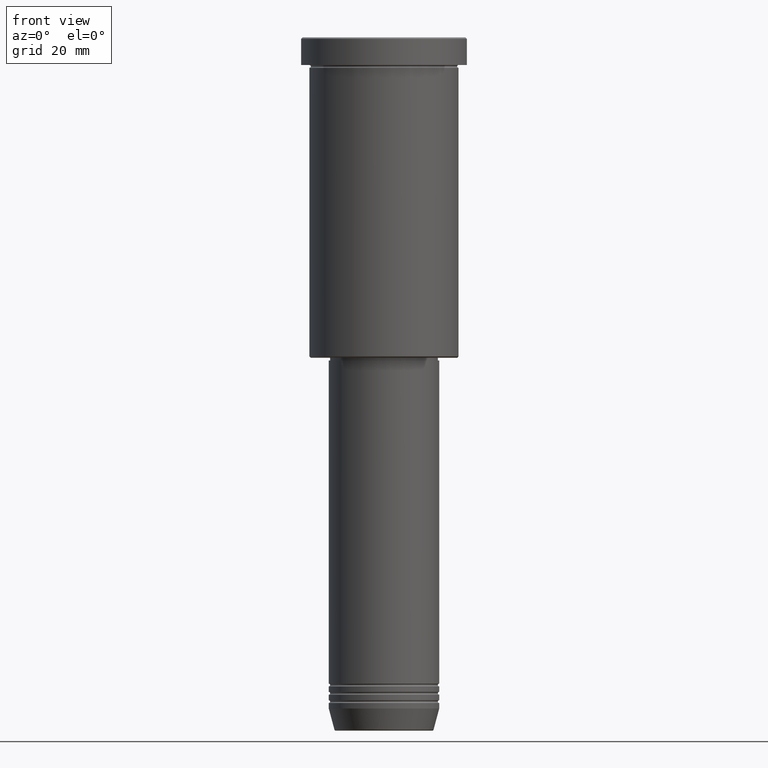
[diagram: clean part render]
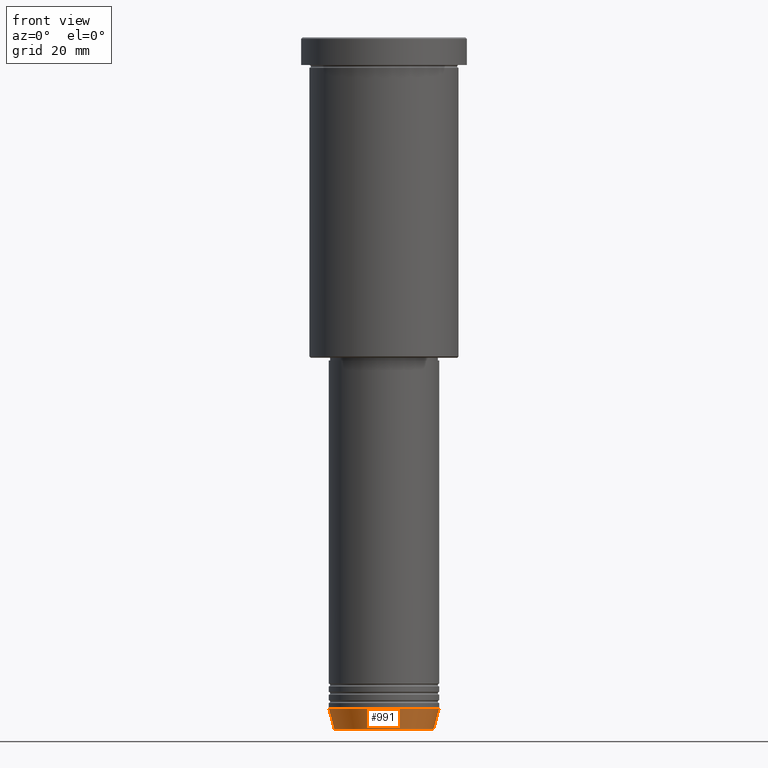
[diagram: same view with one face highlighted and labeled with its STEP entity id]
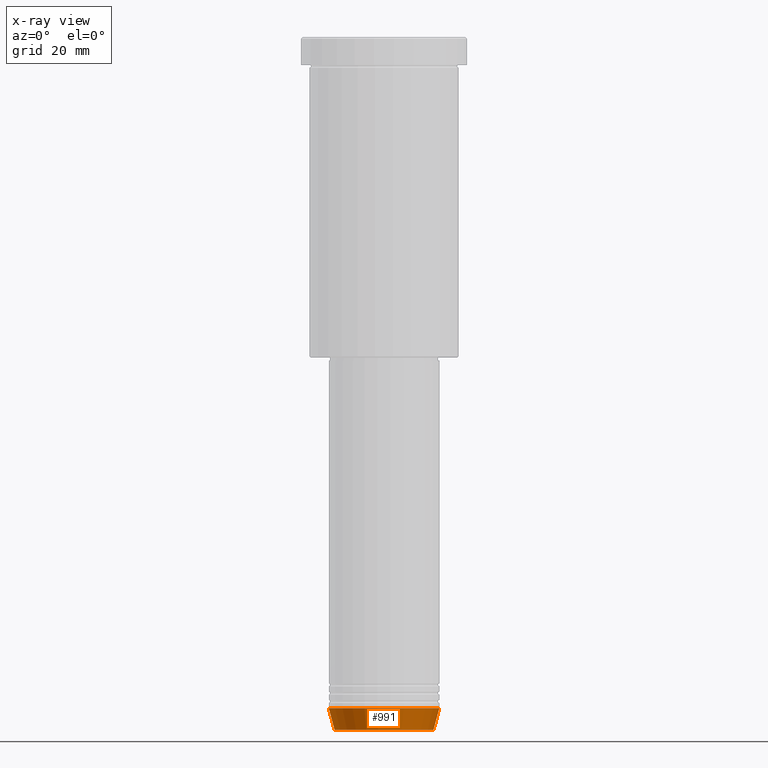
[diagram: x-ray of the same camera — body ghosted, the highlighted face saturated]
A machine part, front view. The second image highlights one B-rep face of the part: STEP entity #991.
The next image is the same camera in x-ray: the body ghosted, the highlighted face saturated — about 0% of this face is hidden behind the body in this view.
In plain terms, the highlighted conical surface has half-angle 15 deg.
Its self-contained STEP definition (entity closure, byte-faithful):
#61 = DIRECTION ( 'NONE',  ( 1.000000000000000000, 0.000000000000000000, 0.000000000000000000 ) ) ;
#77 = EDGE_CURVE ( 'NONE', #794, #263, #563, .T. ) ;
#103 = AXIS2_PLACEMENT_3D ( 'NONE', #241, #883, #61 ) ;
#115 = ORIENTED_EDGE ( 'NONE', *, *, #599, .F. ) ;
#118 = AXIS2_PLACEMENT_3D ( 'NONE', #1069, #248, #892 ) ;
#133 = CARTESIAN_POINT ( 'NONE',  ( 17.95570587970607690, 0.000000000000000000, -250.6294095225512422 ) ) ;
#170 = VERTEX_POINT ( 'NONE', #290 ) ;
#241 = CARTESIAN_POINT ( 'NONE',  ( 0.000000000000000000, 0.000000000000000000, -243.0000000000000284 ) ) ;
#248 = DIRECTION ( 'NONE',  ( -0.000000000000000000, -0.000000000000000000, 1.000000000000000000 ) ) ;
#263 = VERTEX_POINT ( 'NONE', #133 ) ;
#278 = VECTOR ( 'NONE', #1093, 1000.000000000000000 ) ;
#290 = CARTESIAN_POINT ( 'NONE',  ( 20.00000000000000000, 0.000000000000000000, -243.0000000000000284 ) ) ;
#309 = CARTESIAN_POINT ( 'NONE',  ( -20.00000000000000000, 2.449293598294706513E-15, -243.0000000000000284 ) ) ;
#462 = DIRECTION ( 'NONE',  ( -0.000000000000000000, -0.000000000000000000, 1.000000000000000000 ) ) ;
#563 = CIRCLE ( 'NONE', #118, 17.95570587970607690 ) ;
#567 = VERTEX_POINT ( 'NONE', #745 ) ;
#585 = CIRCLE ( 'NONE', #777, 20.00000000000000000 ) ;
#599 = EDGE_CURVE ( 'NONE', #567, #170, #585, .T. ) ;
#615 = FACE_OUTER_BOUND ( 'NONE', #987, .T. ) ;
#623 = CONICAL_SURFACE ( 'NONE', #103, 20.00000000000000000, 0.2617993877991500740 ) ;
#628 = DIRECTION ( 'NONE',  ( 1.000000000000000000, 0.000000000000000000, 0.000000000000000000 ) ) ;
#668 = ORIENTED_EDGE ( 'NONE', *, *, #77, .T. ) ;
#673 = EDGE_CURVE ( 'NONE', #263, #170, #1182, .T. ) ;
#731 = CARTESIAN_POINT ( 'NONE',  ( 20.00000000000000000, 0.000000000000000000, -243.0000000000000284 ) ) ;
#745 = CARTESIAN_POINT ( 'NONE',  ( -20.00000000000000000, 2.449293598294706513E-15, -243.0000000000000284 ) ) ;
#754 = CARTESIAN_POINT ( 'NONE',  ( -17.95570587970607690, 2.324116685748020977E-15, -250.6294095225512422 ) ) ;
#769 = EDGE_CURVE ( 'NONE', #794, #567, #866, .T. ) ;
#777 = AXIS2_PLACEMENT_3D ( 'NONE', #839, #462, #628 ) ;
#794 = VERTEX_POINT ( 'NONE', #754 ) ;
#839 = CARTESIAN_POINT ( 'NONE',  ( 0.000000000000000000, 0.000000000000000000, -243.0000000000000284 ) ) ;
#866 = LINE ( 'NONE', #309, #980 ) ;
#883 = DIRECTION ( 'NONE',  ( -0.000000000000000000, -0.000000000000000000, 1.000000000000000000 ) ) ;
#892 = DIRECTION ( 'NONE',  ( 1.000000000000000000, 0.000000000000000000, 0.000000000000000000 ) ) ;
#904 = ORIENTED_EDGE ( 'NONE', *, *, #769, .F. ) ;
#980 = VECTOR ( 'NONE', #1110, 1000.000000000000000 ) ;
#987 = EDGE_LOOP ( 'NONE', ( #904, #668, #988, #115 ) ) ;
#988 = ORIENTED_EDGE ( 'NONE', *, *, #673, .T. ) ;
#991 = ADVANCED_FACE ( 'NONE', ( #615 ), #623, .T. ) ;
#1069 = CARTESIAN_POINT ( 'NONE',  ( 0.000000000000000000, 0.000000000000000000, -250.6294095225512422 ) ) ;
#1093 = DIRECTION ( 'NONE',  ( 0.2588190451025213501, 0.000000000000000000, 0.9659258262890680902 ) ) ;
#1110 = DIRECTION ( 'NONE',  ( -0.2588190451025213501, 3.169619151431772337E-17, 0.9659258262890680902 ) ) ;
#1182 = LINE ( 'NONE', #731, #278 ) ;